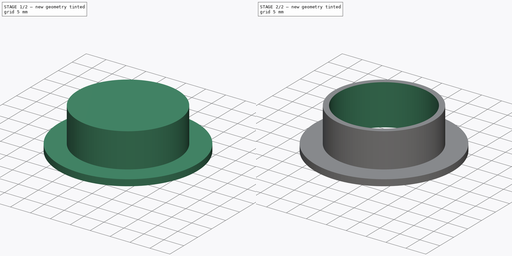
[diagram: build sequence overview — one tinted view per stage of 2, left to right]
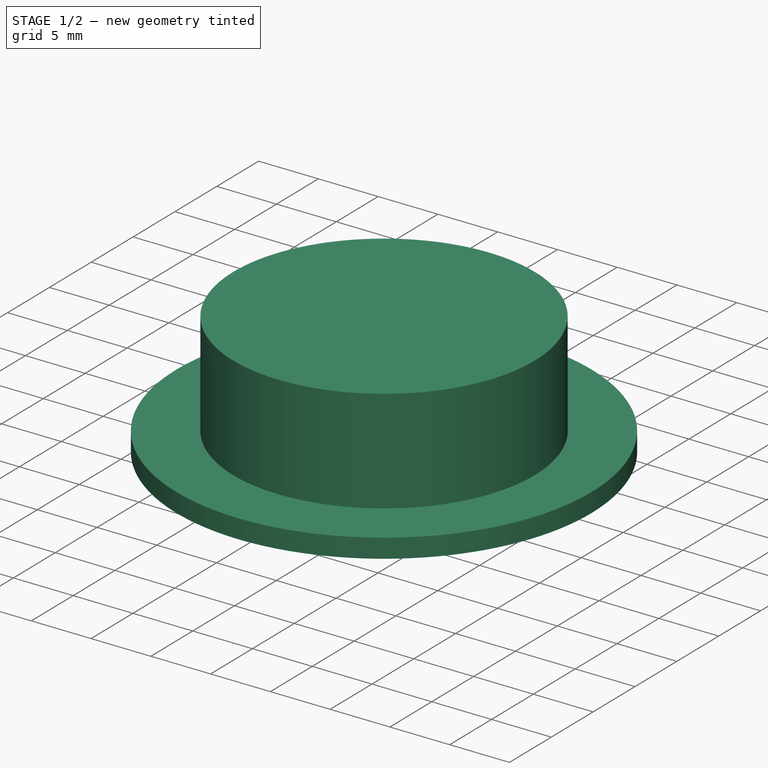
[diagram: stage 1 of 2 — iso view after this stage's code; geometry added in this stage tinted green]
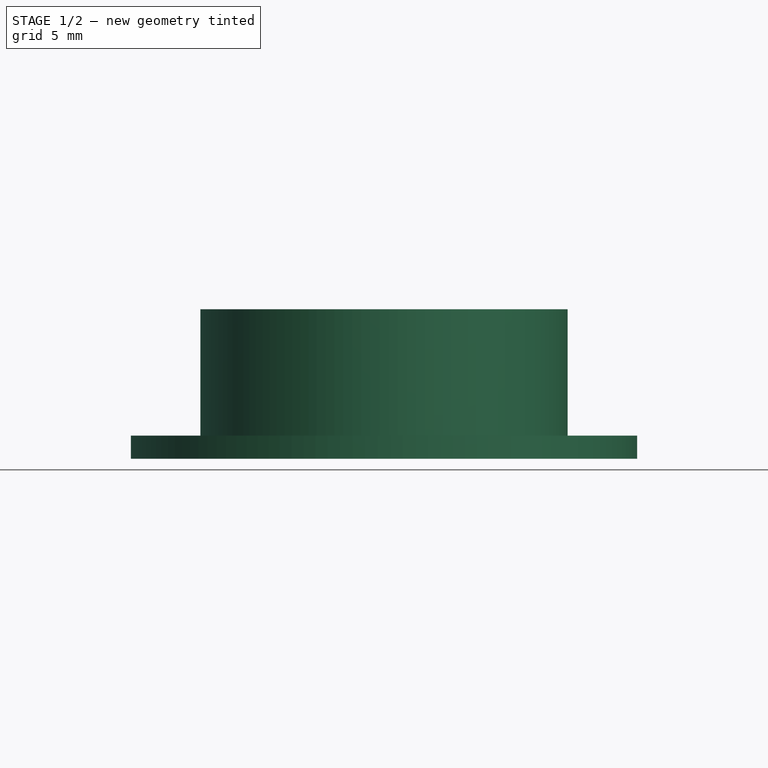
[diagram: stage 1 of 2 — front view after this stage's code; geometry added in this stage tinted green]
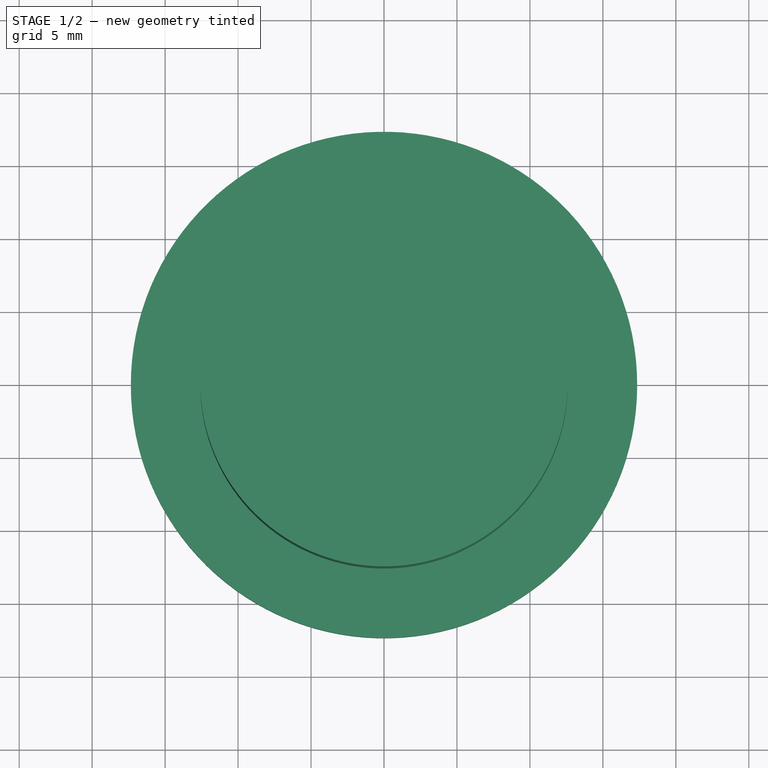
[diagram: stage 1 of 2 — top view after this stage's code; geometry added in this stage tinted green]
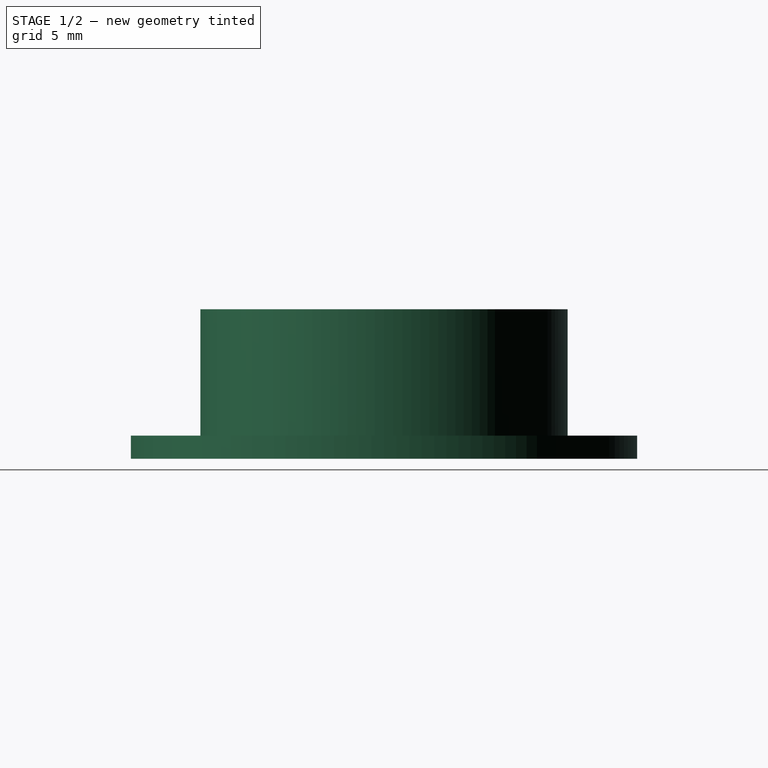
[diagram: stage 1 of 2 — right view after this stage's code; geometry added in this stage tinted green]
FCSTD DOCUMENT  (FreeCAD 0.18R16131 (Git))
Label: BearingFlange
License: All rights reserved
LicenseURL: http://en.wikipedia.org/wiki/All_rights_reserved
objects: Sketcher::SketchObject×3, PartDesign::Pad×2, Spreadsheet::Sheet×1, PartDesign::Pocket×1
note: 9 computed .brp shape members not serialized (recipe doc carries the construction recipe); baked Part::Feature solids carry a one-line shape summary decoded from their .brp

FEATURE [Spreadsheet::Sheet] Spreadsheet  label="p"
  cells = A1=Title; B1=Desired Dimension (in); C1=Converted to mm; A2=Flange width; B2==1 / 4; C2(flange_w)==B2 * 25.4; A3=Flange thickness; B3==1 / 16; C3(flange_th)==B3 * 25.4; A4=Flange depth; B4==1 / 16; C4(flange_d)==B4 * 25.4; A5=Thickness of housing; B5=0.5; C5(housing_th)==B5 * 25.4; A7=Bearing Diameter; C7(bearing_d)=22; A8=Bearing Tolerace; C8(tol)=0.3
FEATURE [Sketcher::SketchObject] Sketch  label="BodySketch"
  MapMode = 5
  Support = -> [XY_Plane]
  expr: Constraints[1] = p.bearing_d / 2 + p.flange_th
  sketch-geometry (1):
    g0: Circle CenterX=0 CenterY=0 CenterZ=0 NormalX=0 NormalY=0 NormalZ=1 AngleXU=0 Radius=12.5875
  constraints (2):
    c: Coincident(g0,g-1)
    c: Radius(g0) = 12.5875
FEATURE [PartDesign::Pad] Pad  label="BodyPad"
  Length = 10.25
  Length2 = 100.08
  Profile = -> Sketch
  Type = 0
  expr: Length = 17 / 2 + 3.5 / 2
FEATURE [Sketcher::SketchObject] Sketch005  label="FlangeSketch"
  MapMode = 5
  Placement = pos=(0,0,0) rot=(1,0,0;3.14159rad)
  Support = -> [Pad]
  expr: Constraints[1] = p.bearing_d / 2 + p.flange_w
  sketch-geometry (1):
    g0: Circle CenterX=0 CenterY=0 CenterZ=0 NormalX=0 NormalY=0 NormalZ=1 AngleXU=0 Radius=17.35
  constraints (2):
    c: Coincident(g0,g-1)
    c: Radius(g0) = 17.35
FEATURE [Sketcher::SketchObject] Sketch004  label="BearingHoleSketch"
  MapMode = 5
  Placement = pos=(0,0,10.25) rot=(0,0,1;0rad)
  Support = -> [Pad]
  expr: Constraints[1] = p.bearing_d / 2 + p.tol
  sketch-geometry (1):
    g0: Circle CenterX=0 CenterY=0 CenterZ=0 NormalX=0 NormalY=0 NormalZ=1 AngleXU=0 Radius=11.3
  constraints (2):
    c: Coincident(g0,g-1)
    c: Radius(g0) = 11.3
FEATURE [PartDesign::Pad] Pad002  label="FlangePad"
  BaseFeature = -> Pad
  Length = 1.5875
  Length2 = 100.076
  Profile = -> Sketch005
  Reversed = true
  Type = 0
  expr: Length = p.flange_d
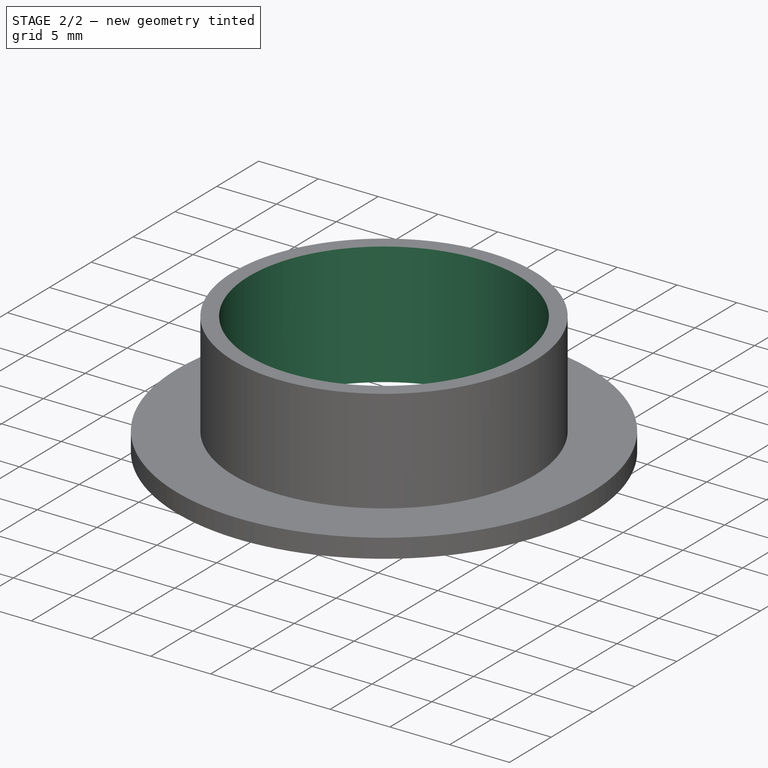
[diagram: stage 2 of 2 — iso view after this stage's code; geometry added in this stage tinted green]
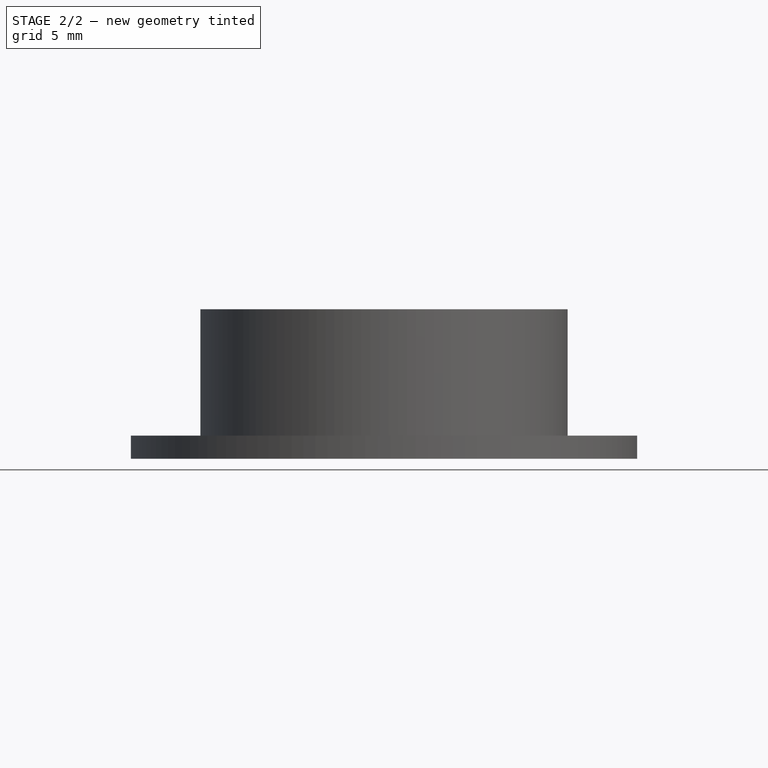
[diagram: stage 2 of 2 — front view after this stage's code; geometry added in this stage tinted green]
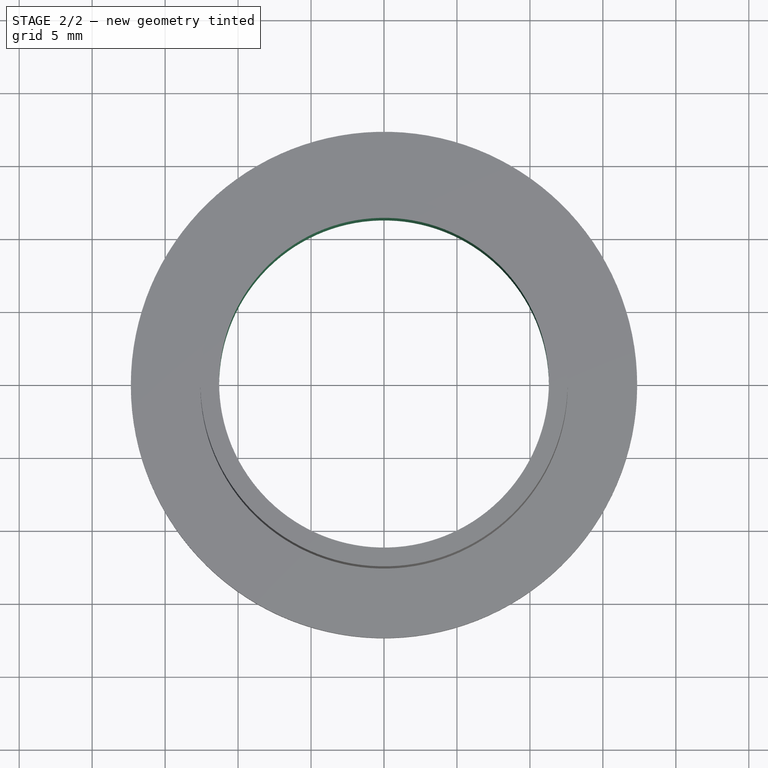
[diagram: stage 2 of 2 — top view after this stage's code; geometry added in this stage tinted green]
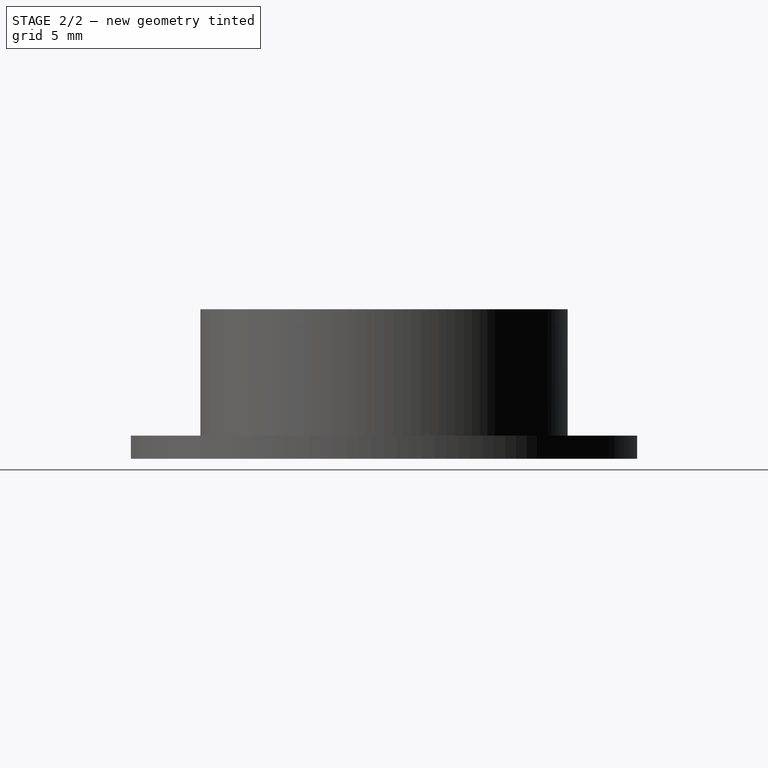
[diagram: stage 2 of 2 — right view after this stage's code; geometry added in this stage tinted green]
FEATURE [PartDesign::Pocket] Pocket002  label="BearingHolePocket"
  BaseFeature = -> Pad002
  Length = 5.08
  Length2 = 100.076
  Profile = -> Sketch004
  Type = 1
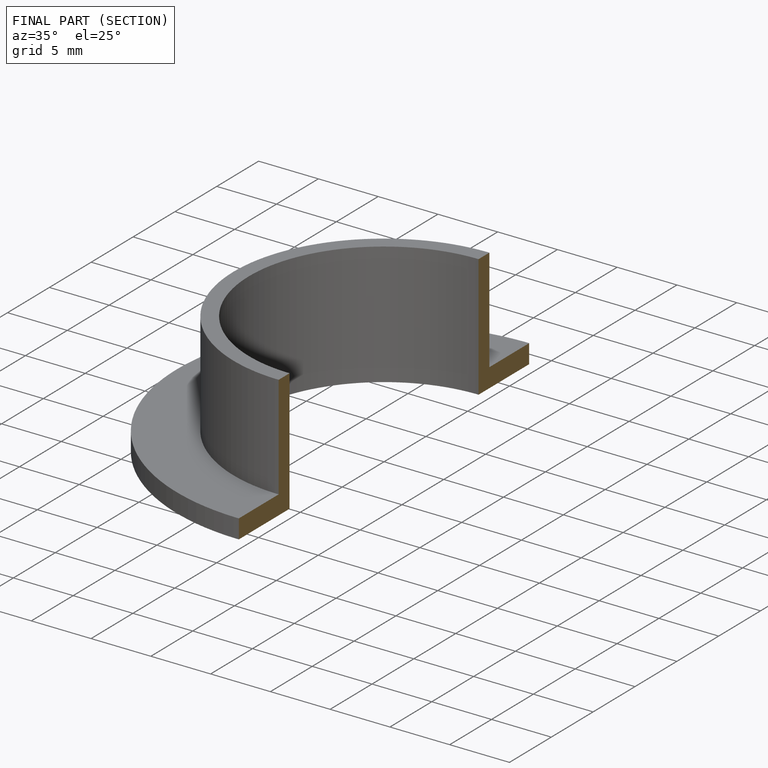
[diagram: finished part — half-section view (interior)]
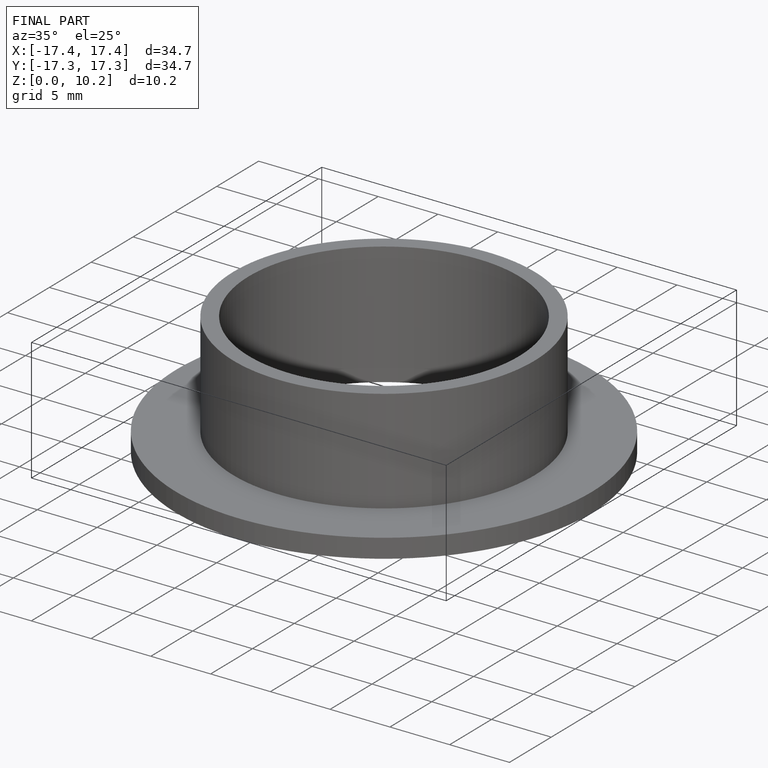
[diagram: finished part — iso view with bounding-box wireframe]
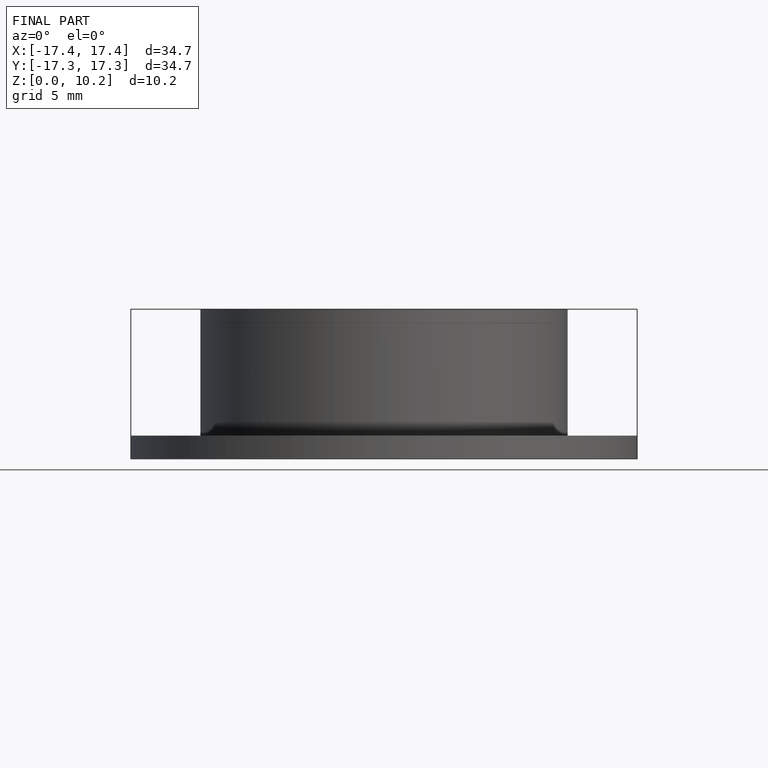
[diagram: finished part — front view with bounding-box wireframe]
